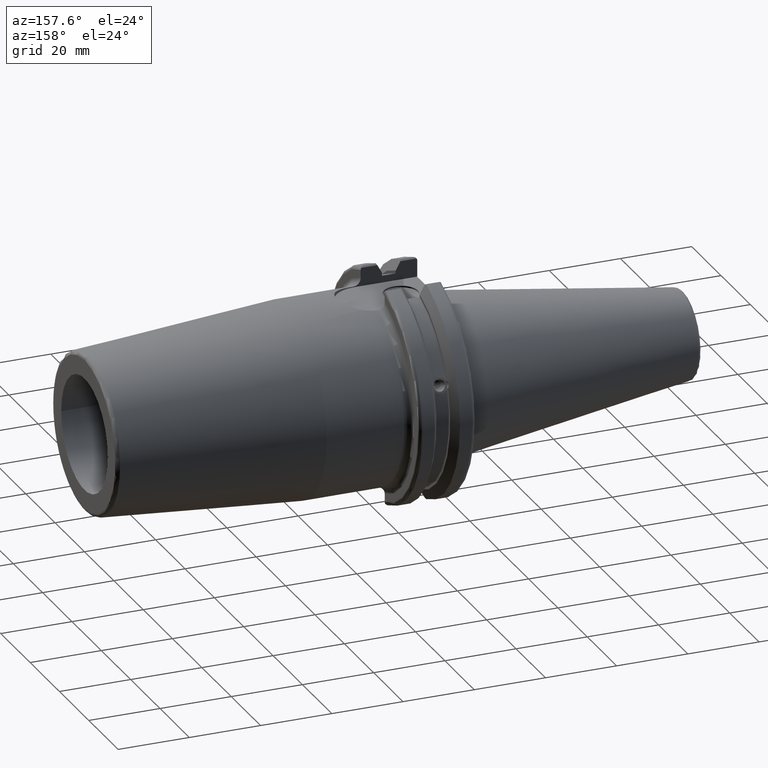
[diagram: clean part render]
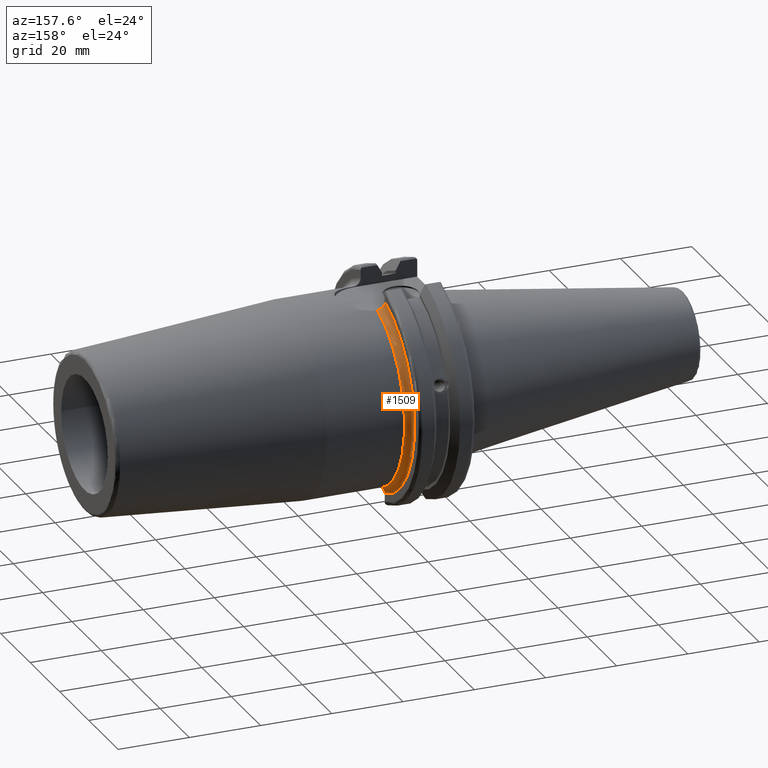
[diagram: same view with one face highlighted and labeled with its STEP entity id]
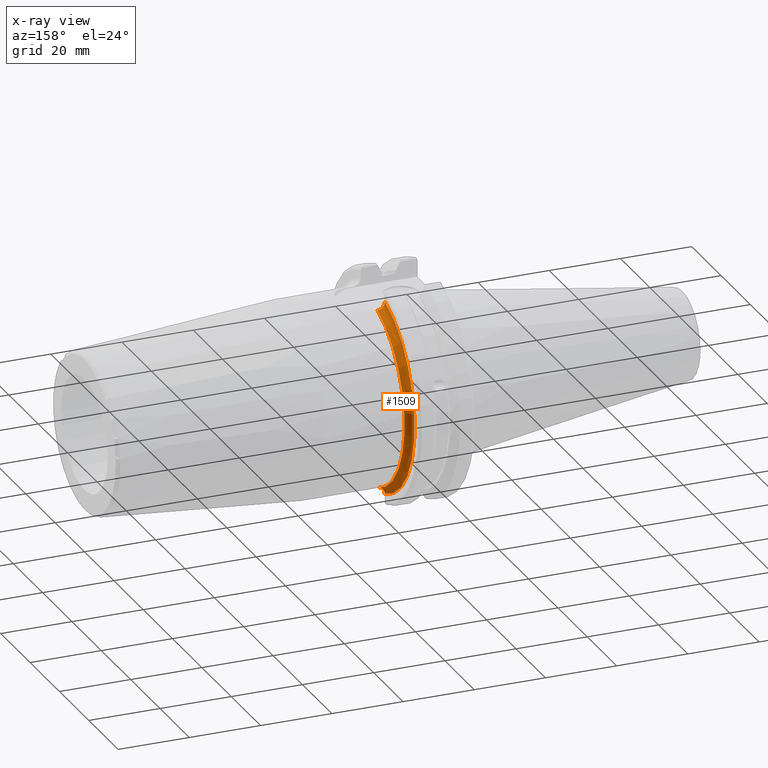
[diagram: x-ray of the same camera — body ghosted, the highlighted face saturated]
A machine part, auxiliary view. The second image highlights one B-rep face of the part: STEP entity #1509.
The next image is the same camera in x-ray: the body ghosted, the highlighted face saturated — about 0% of this face is hidden behind the body in this view.
In plain terms, the highlighted toroidal blend (fillet) surface has major radius 28.5 mm and minor (blend) radius 2 mm.
Its self-contained STEP definition (entity closure, byte-faithful):
#113=TOROIDAL_SURFACE('',#1631,28.5,2.);
#127=FACE_OUTER_BOUND('',#215,.T.);
#215=EDGE_LOOP('',(#1035,#1036,#1037,#1038,#1039,#1040,#1041));
#312=CIRCLE('',#1617,26.5);
#321=CIRCLE('',#1632,28.5);
#557=B_SPLINE_CURVE_WITH_KNOTS('',3,(#2247,#2248,#2249,#2250),
 .UNSPECIFIED.,.F.,.F.,(4,4),(-0.00685923232733344,-0.000357530541197831),
 .UNSPECIFIED.);
#565=B_SPLINE_CURVE_WITH_KNOTS('',3,(#2367,#2368,#2369,#2370),
 .UNSPECIFIED.,.F.,.F.,(4,4),(0.605555811664728,0.611963292187149),
 .UNSPECIFIED.);
#566=B_SPLINE_CURVE_WITH_KNOTS('',3,(#2372,#2373,#2374,#2375,#2376,#2377,
#2378,#2379,#2380,#2381),.UNSPECIFIED.,.F.,.F.,(4,2,2,2,4),(0.611963292187149,
0.678472093757732,0.753289050617111,0.830261667572551,0.908757487348896),
 .UNSPECIFIED.);
#567=B_SPLINE_CURVE_WITH_KNOTS('',3,(#2385,#2386,#2387,#2388,#2389,#2390,
#2391,#2392),.UNSPECIFIED.,.F.,.F.,(4,2,2,4),(0.30235413598056,0.380849955756906,
0.457822572712346,0.503300458912894),.UNSPECIFIED.);
#568=B_SPLINE_CURVE_WITH_KNOTS('',3,(#2393,#2394,#2395,#2396,#2397,#2398),
 .UNSPECIFIED.,.F.,.F.,(4,2,4),(0.503300458912818,0.532639529571724,0.599148331142308),
 .UNSPECIFIED.);
#599=VERTEX_POINT('',#2245);
#600=VERTEX_POINT('',#2246);
#610=VERTEX_POINT('',#2308);
#621=VERTEX_POINT('',#2366);
#622=VERTEX_POINT('',#2371);
#623=VERTEX_POINT('',#2382);
#624=VERTEX_POINT('',#2384);
#757=EDGE_CURVE('',#599,#600,#557,.T.);
#769=EDGE_CURVE('',#600,#610,#312,.T.);
#785=EDGE_CURVE('',#610,#621,#565,.T.);
#786=EDGE_CURVE('',#621,#622,#566,.T.);
#787=EDGE_CURVE('',#622,#623,#321,.T.);
#788=EDGE_CURVE('',#624,#623,#567,.F.);
#789=EDGE_CURVE('',#624,#599,#568,.T.);
#1035=ORIENTED_EDGE('',*,*,#757,.T.);
#1036=ORIENTED_EDGE('',*,*,#769,.T.);
#1037=ORIENTED_EDGE('',*,*,#785,.T.);
#1038=ORIENTED_EDGE('',*,*,#786,.T.);
#1039=ORIENTED_EDGE('',*,*,#787,.T.);
#1040=ORIENTED_EDGE('',*,*,#788,.F.);
#1041=ORIENTED_EDGE('',*,*,#789,.T.);
#1509=ADVANCED_FACE('',(#127),#113,.F.);
#1617=AXIS2_PLACEMENT_3D('',#2310,#1810,#1811);
#1631=AXIS2_PLACEMENT_3D('',#2365,#1841,#1842);
#1632=AXIS2_PLACEMENT_3D('',#2383,#1843,#1844);
#1810=DIRECTION('center_axis',(-1.,0.,0.));
#1811=DIRECTION('ref_axis',(0.,0.999990043367962,0.00446241693951042));
#1841=DIRECTION('center_axis',(-1.,0.,0.));
#1842=DIRECTION('ref_axis',(0.,0.,1.));
#1843=DIRECTION('center_axis',(1.,0.,0.));
#1844=DIRECTION('ref_axis',(0.,0.999990043367962,0.00446241693951042));
#2245=CARTESIAN_POINT('',(20.985,8.18999999999999,25.2037675190955));
#2246=CARTESIAN_POINT('',(21.05,8.1897420594302,25.2027404263902));
#2247=CARTESIAN_POINT('Ctrl Pts',(20.985,8.19,25.2037675190955));
#2248=CARTESIAN_POINT('Ctrl Pts',(21.0066596822935,8.19,25.2030269550051));
#2249=CARTESIAN_POINT('Ctrl Pts',(21.0283288460001,8.18991405813293,25.2026845346504));
#2250=CARTESIAN_POINT('Ctrl Pts',(21.05,8.1897420594302,25.2027404263902));
#2308=CARTESIAN_POINT('',(21.05,8.19,-25.2026566060009));
#2310=CARTESIAN_POINT('Origin',(21.05,0.,0.));
#2365=CARTESIAN_POINT('Origin',(21.05,0.,0.));
#2366=CARTESIAN_POINT('',(20.985,8.19000000000001,-25.2037675190955));
#2367=CARTESIAN_POINT('Ctrl Pts',(21.05,8.19,-25.2026566060009));
#2368=CARTESIAN_POINT('Ctrl Pts',(21.0286417315919,8.19,-25.2026566060009));
#2369=CARTESIAN_POINT('Ctrl Pts',(21.0069502987454,8.19,-25.2030170185663));
#2370=CARTESIAN_POINT('Ctrl Pts',(20.985,8.19,-25.2037675190955));
#2371=CARTESIAN_POINT('',(19.05,8.19,-27.2978735435565));
#2372=CARTESIAN_POINT('Ctrl Pts',(20.985,8.19,-25.2037675190955));
#2373=CARTESIAN_POINT('Ctrl Pts',(20.7571587980537,8.19,-25.2115576154689));
#2374=CARTESIAN_POINT('Ctrl Pts',(20.5016668821134,8.19,-25.2700465210143));
#2375=CARTESIAN_POINT('Ctrl Pts',(20.0683591355164,8.19,-25.4548877652789));
#2376=CARTESIAN_POINT('Ctrl Pts',(19.8224629313532,8.19,-25.6254641098208));
#2377=CARTESIAN_POINT('Ctrl Pts',(19.4700477206645,8.19,-25.9885127973065));
#2378=CARTESIAN_POINT('Ctrl Pts',(19.3031737487845,8.19,-26.2472590391816));
#2379=CARTESIAN_POINT('Ctrl Pts',(19.1094531968333,8.19,-26.7279176858725));
#2380=CARTESIAN_POINT('Ctrl Pts',(19.05,8.19,-27.0362208109687));
#2381=CARTESIAN_POINT('Ctrl Pts',(19.05,8.19,-27.2978735435565));
#2382=CARTESIAN_POINT('',(19.05,8.19,27.2978735435565));
#2383=CARTESIAN_POINT('Origin',(19.05,0.,0.));
#2384=CARTESIAN_POINT('',(20.0244662958217,8.19000000000165,25.5000000000049));
#2385=CARTESIAN_POINT('Ctrl Pts',(19.05,8.19,27.2978735435565));
#2386=CARTESIAN_POINT('Ctrl Pts',(19.05,8.19,27.0362208109687));
#2387=CARTESIAN_POINT('Ctrl Pts',(19.1094531968333,8.19,26.7279176858725));
#2388=CARTESIAN_POINT('Ctrl Pts',(19.3031737487845,8.19,26.2472590391816));
#2389=CARTESIAN_POINT('Ctrl Pts',(19.4700477206645,8.19,25.9885127973065));
#2390=CARTESIAN_POINT('Ctrl Pts',(19.7543453755304,8.19,25.695636986831));
#2391=CARTESIAN_POINT('Ctrl Pts',(19.8850320103989,8.19,25.5874688145189));
#2392=CARTESIAN_POINT('Ctrl Pts',(20.0244662958232,8.19,25.5000000000057));
#2393=CARTESIAN_POINT('Ctrl Pts',(20.0244662958225,8.18999999999999,25.5000000000061));
#2394=CARTESIAN_POINT('Ctrl Pts',(20.1144192970305,8.18999999999999,25.4435713938449));
#2395=CARTESIAN_POINT('Ctrl Pts',(20.2077952907399,8.18999999999999,25.3954068244709));
#2396=CARTESIAN_POINT('Ctrl Pts',(20.5016668821134,8.18999999999999,25.2700465210143));
#2397=CARTESIAN_POINT('Ctrl Pts',(20.7571587980537,8.18999999999999,25.2115576154689));
#2398=CARTESIAN_POINT('Ctrl Pts',(20.985,8.18999999999999,25.2037675190955));